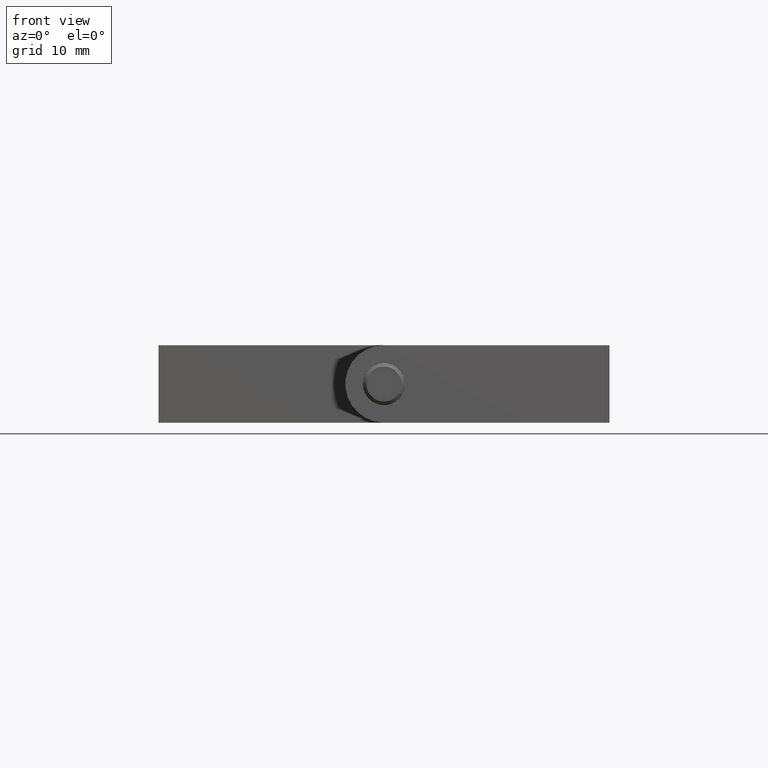
[diagram: clean part render]
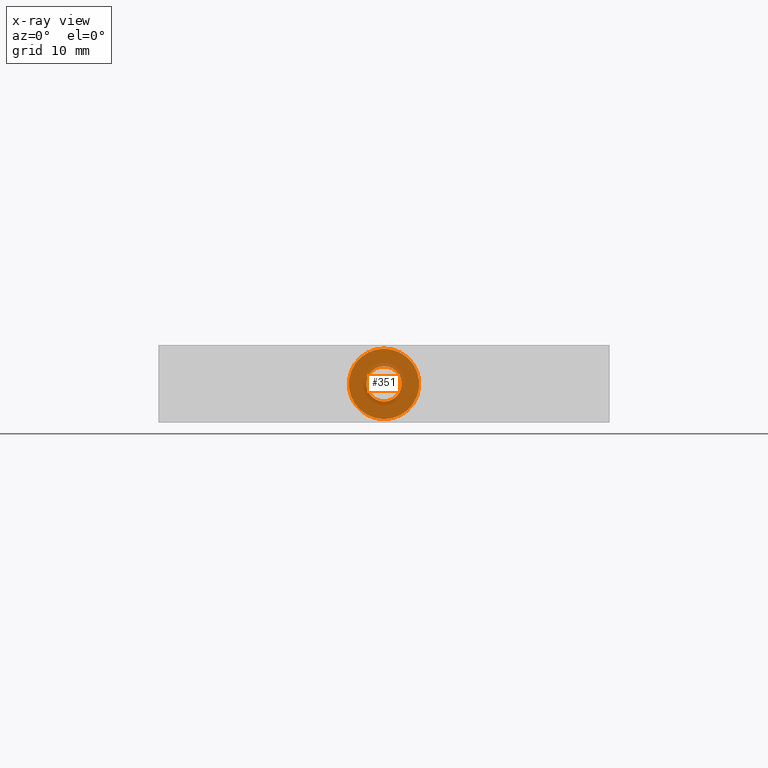
[diagram: x-ray — body ghosted, one internal face saturated and labeled with its STEP entity id]
A machine part, front view, then the same camera in x-ray: the body is ghosted and one INTERNAL B-rep face — a face not visible from any outside direction — is saturated and labeled: STEP entity #351.
In plain terms, the highlighted planar face has unit normal (-0, -1, -0).
Its self-contained STEP definition (entity closure, byte-faithful):
#49=FACE_BOUND('',#113,.T.);
#60=PLANE('',#488);
#82=FACE_OUTER_BOUND('',#112,.T.);
#112=EDGE_LOOP('',(#318));
#113=EDGE_LOOP('',(#319));
#173=CIRCLE('',#484,2.5);
#175=CIRCLE('',#487,5.);
#199=VERTEX_POINT('',#695);
#201=VERTEX_POINT('',#701);
#238=EDGE_CURVE('',#199,#199,#173,.T.);
#241=EDGE_CURVE('',#201,#201,#175,.T.);
#318=ORIENTED_EDGE('',*,*,#241,.T.);
#319=ORIENTED_EDGE('',*,*,#238,.T.);
#351=ADVANCED_FACE('',(#82,#49),#60,.F.);
#484=AXIS2_PLACEMENT_3D('',#697,#593,#594);
#487=AXIS2_PLACEMENT_3D('',#703,#600,#601);
#488=AXIS2_PLACEMENT_3D('',#704,#602,#603);
#593=DIRECTION('center_axis',(0.,0.,1.));
#594=DIRECTION('ref_axis',(1.,0.,0.));
#600=DIRECTION('center_axis',(0.,0.,-1.));
#601=DIRECTION('ref_axis',(-1.,0.,0.));
#602=DIRECTION('center_axis',(0.,0.,1.));
#603=DIRECTION('ref_axis',(1.,0.,0.));
#695=CARTESIAN_POINT('',(-2.5,3.06161699786838E-16,0.));
#697=CARTESIAN_POINT('Origin',(0.,0.,0.));
#701=CARTESIAN_POINT('',(5.,6.12323399573676E-16,0.));
#703=CARTESIAN_POINT('Origin',(0.,0.,0.));
#704=CARTESIAN_POINT('Origin',(-2.36064120735333E-16,9.25185853854297E-17,
0.));